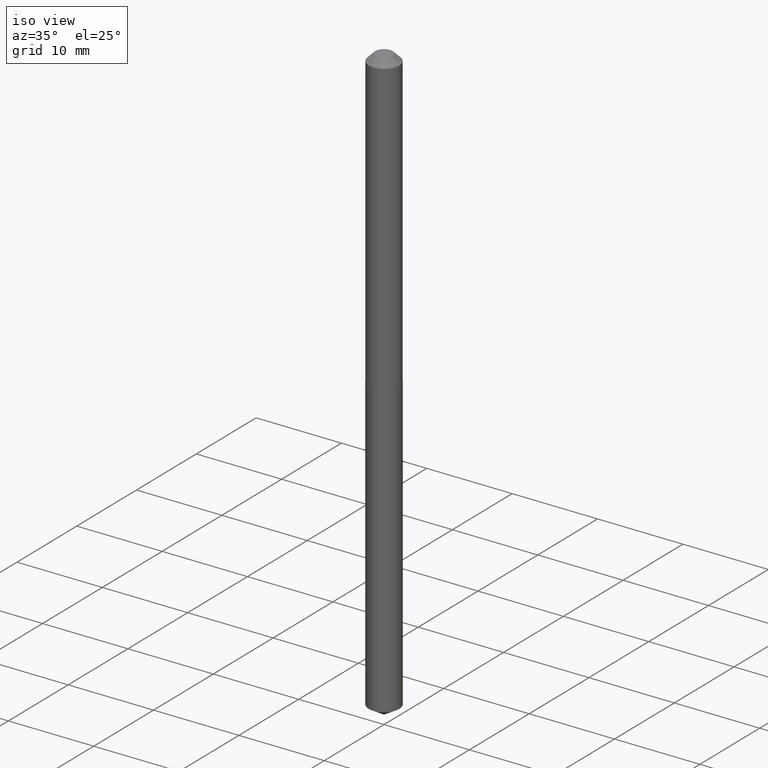
[diagram: clean part render]
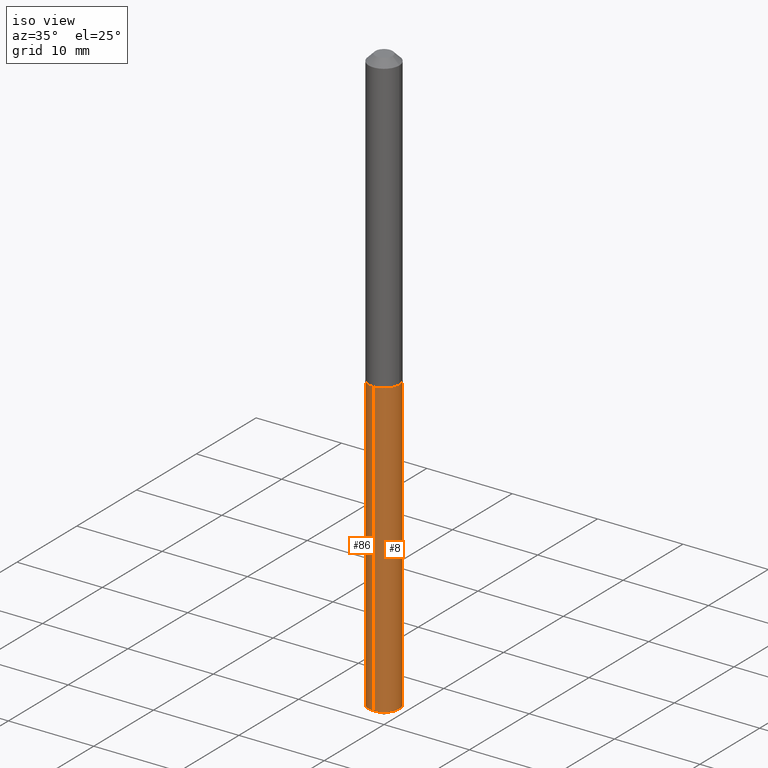
[diagram: same view with one multi-face feature highlighted, each face labeled with its STEP entity id]
A machine part, iso view. The highlighted faces form ONE feature: a constant-radius fillet chain: 2 tangent blend faces with common blend radius 1.7996 mm. The faces share edges in the B-rep.
Their STEP definitions:
[1] entity #8 (Cylinder):
#1 = CIRCLE ( 'NONE', #370, 0.07084999999999999631 ) ;
#8 = ADVANCED_FACE ( 'NONE', ( #150 ), #231, .T. ) ;
#14 = VERTEX_POINT ( 'NONE', #221 ) ;
#18 = VERTEX_POINT ( 'NONE', #386 ) ;
#31 = EDGE_CURVE ( 'NONE', #14, #92, #316, .T. ) ;
#50 = CARTESIAN_POINT ( 'NONE',  ( 3.331217607785392596E-29, -4.756095879772132072E-15, -1.362199999999999855 ) ) ;
#70 = CARTESIAN_POINT ( 'NONE',  ( 5.034195282860974170E-16, 0.07084999999999523623, -1.362200000000000077 ) ) ;
#72 = VERTEX_POINT ( 'NONE', #70 ) ;
#80 = DIRECTION ( 'NONE',  ( -6.982962677686265133E-15, -1.000000000000000000, 0.000000000000000000 ) ) ;
#85 = CARTESIAN_POINT ( 'NONE',  ( -4.947429057140386300E-16, -0.07085000000000474252, -1.362199999999999411 ) ) ;
#92 = VERTEX_POINT ( 'NONE', #85 ) ;
#93 = AXIS2_PLACEMENT_3D ( 'NONE', #258, #284, #80 ) ;
#102 = DIRECTION ( 'NONE',  ( -2.445494471656019895E-29, 3.491444584428052724E-15, 1.000000000000000000 ) ) ;
#123 = CARTESIAN_POINT ( 'NONE',  ( 5.034195282860641863E-16, 0.07084999999999523623, -1.362200000000000077 ) ) ;
#124 = ORIENTED_EDGE ( 'NONE', *, *, #133, .T. ) ;
#131 = VECTOR ( 'NONE', #184, 39.37007874015748143 ) ;
#133 = EDGE_CURVE ( 'NONE', #14, #18, #146, .T. ) ;
#146 = CIRCLE ( 'NONE', #93, 0.07084999999999999631 ) ;
#150 = FACE_OUTER_BOUND ( 'NONE', #227, .T. ) ;
#166 = DIRECTION ( 'NONE',  ( -6.982962677686265133E-15, -1.000000000000000000, 3.855819327684210983E-15 ) ) ;
#180 = DIRECTION ( 'NONE',  ( -2.445494471656019615E-29, 3.491444584428053118E-15, 1.000000000000000000 ) ) ;
#181 = EDGE_CURVE ( 'NONE', #18, #72, #351, .T. ) ;
#184 = DIRECTION ( 'NONE',  ( -2.445494471656019895E-29, 3.491444584428052724E-15, 1.000000000000000000 ) ) ;
#204 = ORIENTED_EDGE ( 'NONE', *, *, #355, .F. ) ;
#221 = CARTESIAN_POINT ( 'NONE',  ( -4.947429057140053992E-16, -0.07085000000000944709, -2.713329025141897777 ) ) ;
#227 = EDGE_LOOP ( 'NONE', ( #124, #260, #204, #277 ) ) ;
#230 = VECTOR ( 'NONE', #102, 39.37007874015748143 ) ;
#231 = CYLINDRICAL_SURFACE ( 'NONE', #305, 0.07084999999999999631 ) ;
#258 = CARTESIAN_POINT ( 'NONE',  ( 6.635396169263890678E-29, -9.473487997467366405E-15, -2.713329025141897777 ) ) ;
#260 = ORIENTED_EDGE ( 'NONE', *, *, #181, .T. ) ;
#264 = CARTESIAN_POINT ( 'NONE',  ( 3.331217607785392596E-29, -4.756095879772132072E-15, -1.362199999999999855 ) ) ;
#277 = ORIENTED_EDGE ( 'NONE', *, *, #31, .F. ) ;
#284 = DIRECTION ( 'NONE',  ( -2.445494471656019615E-29, 3.491444584428053118E-15, 1.000000000000000000 ) ) ;
#298 = CARTESIAN_POINT ( 'NONE',  ( -4.947429057140386300E-16, -0.07085000000000474252, -1.362199999999999411 ) ) ;
#305 = AXIS2_PLACEMENT_3D ( 'NONE', #264, #390, #166 ) ;
#316 = LINE ( 'NONE', #298, #230 ) ;
#351 = LINE ( 'NONE', #123, #131 ) ;
#355 = EDGE_CURVE ( 'NONE', #92, #72, #1, .T. ) ;
#370 = AXIS2_PLACEMENT_3D ( 'NONE', #50, #180, #381 ) ;
#381 = DIRECTION ( 'NONE',  ( -6.982962677686265133E-15, -1.000000000000000000, 3.855819327684210983E-15 ) ) ;
#386 = CARTESIAN_POINT ( 'NONE',  ( 5.034195282860970226E-16, 0.07084999999999049003, -2.713329025141897777 ) ) ;
#390 = DIRECTION ( 'NONE',  ( -2.445494471656019615E-29, 3.491444584428053118E-15, 1.000000000000000000 ) ) ;
[2] entity #86 (Cylinder):
#14 = VERTEX_POINT ( 'NONE', #221 ) ;
#18 = VERTEX_POINT ( 'NONE', #386 ) ;
#31 = EDGE_CURVE ( 'NONE', #14, #92, #316, .T. ) ;
#37 = AXIS2_PLACEMENT_3D ( 'NONE', #329, #303, #135 ) ;
#43 = ORIENTED_EDGE ( 'NONE', *, *, #187, .T. ) ;
#70 = CARTESIAN_POINT ( 'NONE',  ( 5.034195282860974170E-16, 0.07084999999999523623, -1.362200000000000077 ) ) ;
#72 = VERTEX_POINT ( 'NONE', #70 ) ;
#73 = EDGE_CURVE ( 'NONE', #72, #92, #126, .T. ) ;
#85 = CARTESIAN_POINT ( 'NONE',  ( -4.947429057140386300E-16, -0.07085000000000474252, -1.362199999999999411 ) ) ;
#86 = ADVANCED_FACE ( 'NONE', ( #99 ), #219, .T. ) ;
#90 = DIRECTION ( 'NONE',  ( -6.982962677686265133E-15, -1.000000000000000000, 0.000000000000000000 ) ) ;
#92 = VERTEX_POINT ( 'NONE', #85 ) ;
#99 = FACE_OUTER_BOUND ( 'NONE', #211, .T. ) ;
#102 = DIRECTION ( 'NONE',  ( -2.445494471656019895E-29, 3.491444584428052724E-15, 1.000000000000000000 ) ) ;
#108 = CARTESIAN_POINT ( 'NONE',  ( 3.331217607785392596E-29, -4.756095879772132072E-15, -1.362199999999999855 ) ) ;
#123 = CARTESIAN_POINT ( 'NONE',  ( 5.034195282860641863E-16, 0.07084999999999523623, -1.362200000000000077 ) ) ;
#126 = CIRCLE ( 'NONE', #37, 0.07084999999999999631 ) ;
#131 = VECTOR ( 'NONE', #184, 39.37007874015748143 ) ;
#135 = DIRECTION ( 'NONE',  ( -6.982962677686265133E-15, -1.000000000000000000, 3.855819327684210983E-15 ) ) ;
#142 = AXIS2_PLACEMENT_3D ( 'NONE', #353, #344, #90 ) ;
#171 = ORIENTED_EDGE ( 'NONE', *, *, #181, .F. ) ;
#174 = DIRECTION ( 'NONE',  ( -2.445494471656019615E-29, 3.491444584428053118E-15, 1.000000000000000000 ) ) ;
#181 = EDGE_CURVE ( 'NONE', #18, #72, #351, .T. ) ;
#184 = DIRECTION ( 'NONE',  ( -2.445494471656019895E-29, 3.491444584428052724E-15, 1.000000000000000000 ) ) ;
#187 = EDGE_CURVE ( 'NONE', #18, #14, #337, .T. ) ;
#211 = EDGE_LOOP ( 'NONE', ( #171, #43, #281, #236 ) ) ;
#219 = CYLINDRICAL_SURFACE ( 'NONE', #265, 0.07084999999999999631 ) ;
#221 = CARTESIAN_POINT ( 'NONE',  ( -4.947429057140053992E-16, -0.07085000000000944709, -2.713329025141897777 ) ) ;
#230 = VECTOR ( 'NONE', #102, 39.37007874015748143 ) ;
#236 = ORIENTED_EDGE ( 'NONE', *, *, #73, .F. ) ;
#265 = AXIS2_PLACEMENT_3D ( 'NONE', #108, #174, #363 ) ;
#281 = ORIENTED_EDGE ( 'NONE', *, *, #31, .T. ) ;
#298 = CARTESIAN_POINT ( 'NONE',  ( -4.947429057140386300E-16, -0.07085000000000474252, -1.362199999999999411 ) ) ;
#303 = DIRECTION ( 'NONE',  ( -2.445494471656019615E-29, 3.491444584428053118E-15, 1.000000000000000000 ) ) ;
#316 = LINE ( 'NONE', #298, #230 ) ;
#329 = CARTESIAN_POINT ( 'NONE',  ( 3.331217607785392596E-29, -4.756095879772132072E-15, -1.362199999999999855 ) ) ;
#337 = CIRCLE ( 'NONE', #142, 0.07084999999999999631 ) ;
#344 = DIRECTION ( 'NONE',  ( -2.445494471656019615E-29, 3.491444584428053118E-15, 1.000000000000000000 ) ) ;
#351 = LINE ( 'NONE', #123, #131 ) ;
#353 = CARTESIAN_POINT ( 'NONE',  ( 6.635396169263890678E-29, -9.473487997467366405E-15, -2.713329025141897777 ) ) ;
#363 = DIRECTION ( 'NONE',  ( -6.982962677686265133E-15, -1.000000000000000000, 3.855819327684210983E-15 ) ) ;
#386 = CARTESIAN_POINT ( 'NONE',  ( 5.034195282860970226E-16, 0.07084999999999049003, -2.713329025141897777 ) ) ;